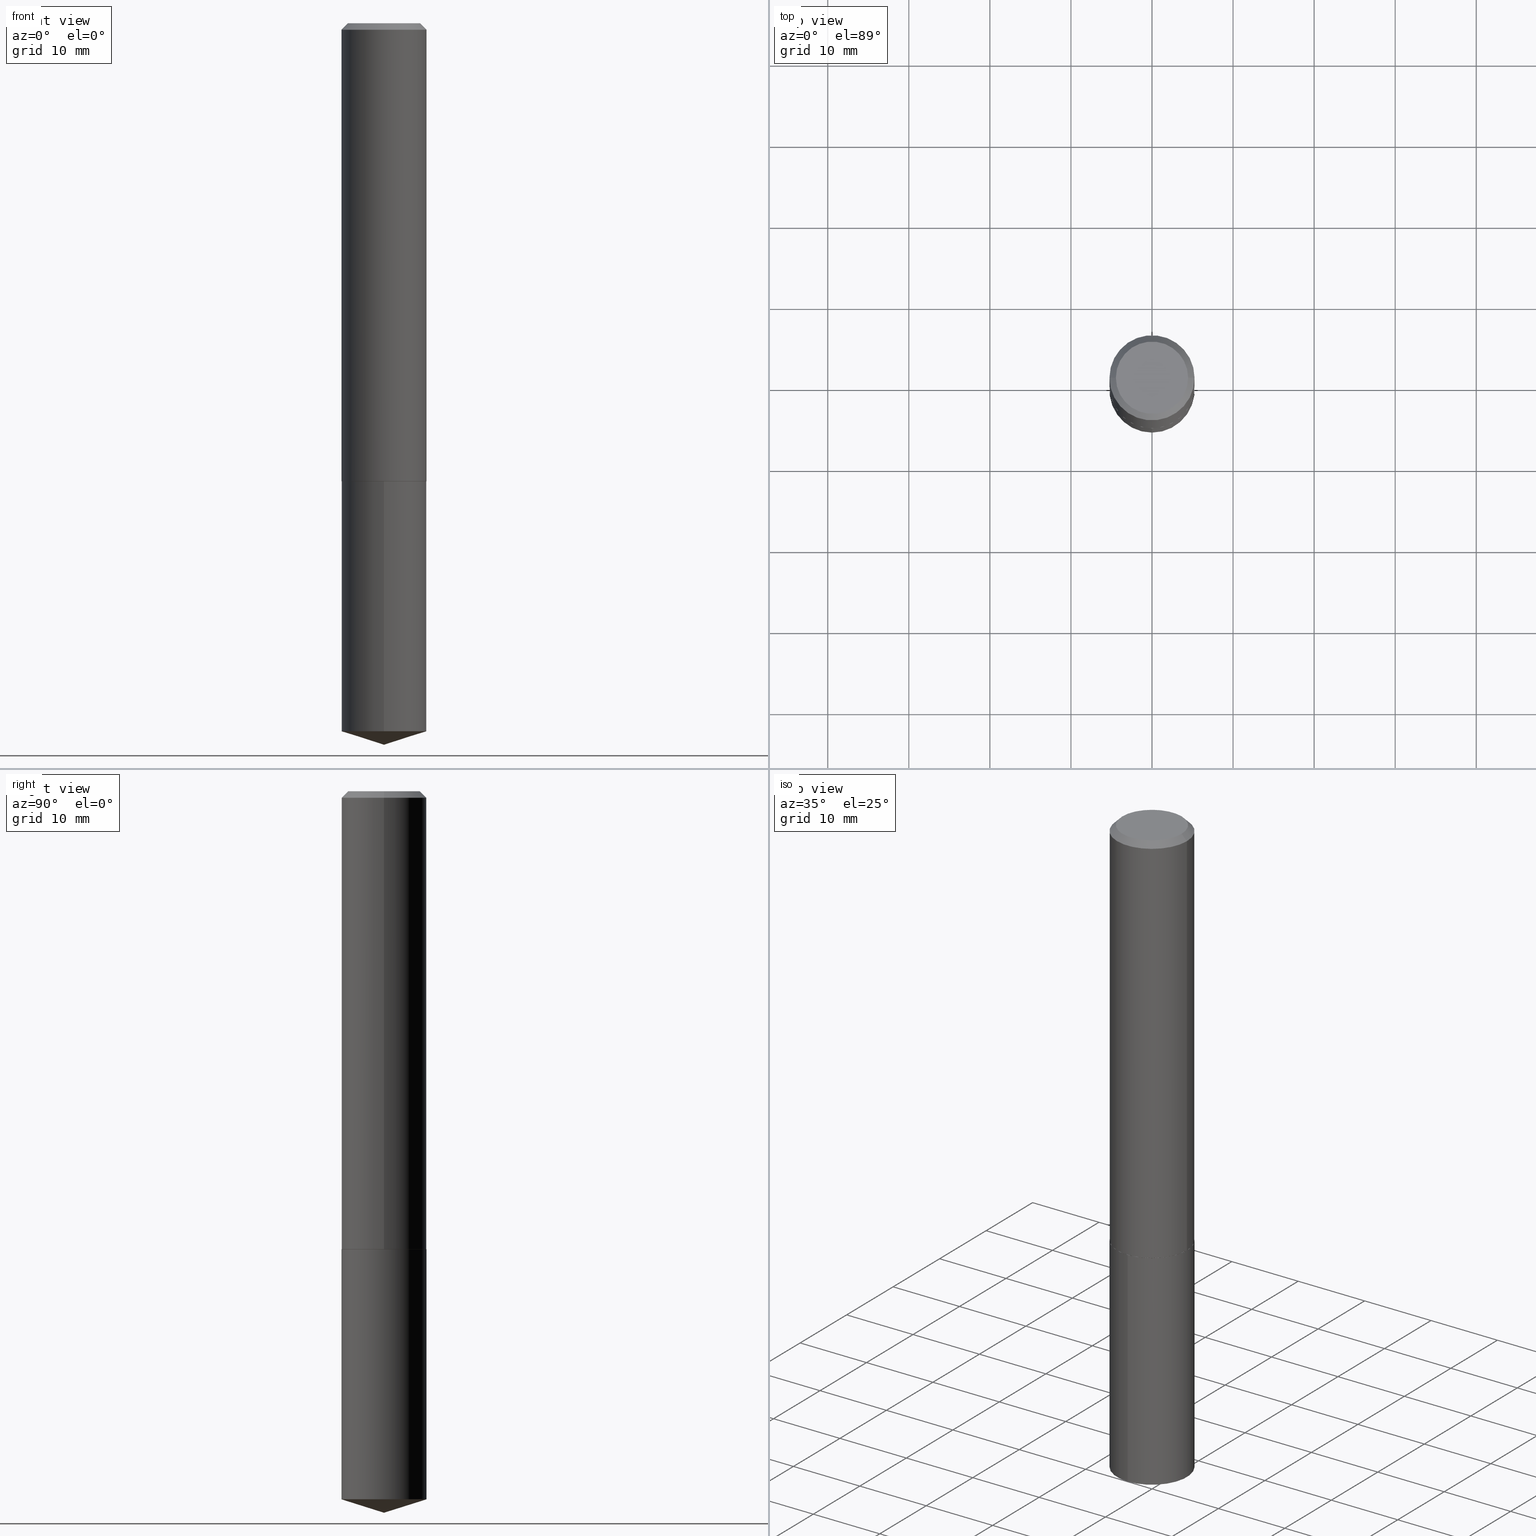
[diagram: canonical four-view strip — front | top / right | iso, engineering-drawing reading convention]
A machine part, canonical four-view strip (front | top / right | iso — engineering-drawing reading convention). The complete STEP part file that produces these views, byte-faithful:
ISO-10303-21;
HEADER;
FILE_DESCRIPTION (( 'STEP AP203' ),
    '1' );
FILE_NAME ('68753.STEP',
    '2024-04-23T13:51:40',
    ( '' ),
    ( '' ),
    'SwSTEP 2.0',
    'SolidWorks 2023',
    '' );
FILE_SCHEMA (( 'CONFIG_CONTROL_DESIGN' ));
ENDSEC;

DATA;
#1 = PERSON_AND_ORGANIZATION_ROLE ( 'design_supplier' ) ;
#2 = DIRECTION ( 'NONE',  ( 1.000000000000000000, -6.982962677686266711E-15, 0.000000000000000000 ) ) ;
#3 = CARTESIAN_POINT ( 'NONE',  ( 0.2067000000000002724, -9.208083734931024811E-15, -2.223899999999999544 ) ) ;
#4 = MANIFOLD_SOLID_BREP ( 'Body-Move/Copy2[1]', #75 ) ;
#5 = FACE_OUTER_BOUND ( 'NONE', #359, .T. ) ;
#6 = VERTEX_POINT ( 'NONE', #215 ) ;
#7 = EDGE_CURVE ( 'NONE', #139, #6, #233, .T. ) ;
#8 = PERSON_AND_ORGANIZATION_ROLE ( 'design_owner' ) ;
#9 = EDGE_CURVE ( 'NONE', #365, #387, #270, .T. ) ;
#10 = APPROVAL_PERSON_ORGANIZATION ( #118, #20, #295 ) ;
#11 = DIRECTION ( 'NONE',  ( -6.982962677686265133E-15, -1.000000000000000000, 2.643297526525653668E-15 ) ) ;
#12 = CYLINDRICAL_SURFACE ( 'NONE', #163, 0.2067000000000000226 ) ;
#13 = DIRECTION ( 'NONE',  ( 1.000000000000000000, -6.982962677686266711E-15, 4.876176775795936914E-29 ) ) ;
#14 = COORDINATED_UNIVERSAL_TIME_OFFSET ( 5, 0, .BEHIND. ) ;
#15 = LINE ( 'NONE', #98, #258 ) ;
#16 = PLANE ( 'NONE',  #193 ) ;
#17 = AXIS2_PLACEMENT_3D ( 'NONE', #277, #74, #182 ) ;
#18 = ORIENTED_EDGE ( 'NONE', *, *, #291, .F. ) ;
#19 = EDGE_LOOP ( 'NONE', ( #87, #184, #217, #186 ) ) ;
#20 = APPROVAL ( #362, 'UNSPECIFIED' ) ;
#21 = ORGANIZATION ( 'UNSPECIFIED', 'UNSPECIFIED', '' ) ;
#22 = PRODUCT_DEFINITION_SHAPE ( 'NONE', 'NONE',  #247 ) ;
#23 = COORDINATED_UNIVERSAL_TIME_OFFSET ( 5, 0, .BEHIND. ) ;
#24 = DIRECTION ( 'NONE',  ( -0.7071067811862576935, 7.493145998869306553E-15, 0.7071067811868373409 ) ) ;
#25 = CARTESIAN_POINT ( 'NONE',  ( -0.2067000000000002724, -6.296013514637141815E-15, -2.223899999999999544 ) ) ;
#26 = AXIS2_PLACEMENT_3D ( 'NONE', #330, #29, #138 ) ;
#27 = LOCAL_TIME ( 9, 51, 40.00000000000000000, #140 ) ;
#28 = COORDINATED_UNIVERSAL_TIME_OFFSET ( 5, 0, .BEHIND. ) ;
#29 = DIRECTION ( 'NONE',  ( 2.445468806185136597E-29, -3.491481338843145583E-15, -1.000000000000000000 ) ) ;
#30 = EDGE_LOOP ( 'NONE', ( #263, #199 ) ) ;
#31 = DATE_AND_TIME ( #133, #350 ) ;
#32 = CARTESIAN_POINT ( 'NONE',  ( -0.2062000000000005218, -6.298662741811253016E-15, -2.224399999999999711 ) ) ;
#33 = ORIENTED_EDGE ( 'NONE', *, *, #9, .T. ) ;
#34 = CIRCLE ( 'NONE', #379, 0.2067000000000000226 ) ;
#35 = DIRECTION ( 'NONE',  ( -2.445468806185136597E-29, 3.491481338843145583E-15, 1.000000000000000000 ) ) ;
#36 = DIRECTION ( 'NONE',  ( -2.445468806185136597E-29, 3.491481338843145583E-15, 1.000000000000000000 ) ) ;
#37 = EDGE_CURVE ( 'NONE', #130, #366, #161, .T. ) ;
#38 = DIRECTION ( 'NONE',  ( -2.444969995752846292E-29, 3.492195663772712113E-15, 1.000000000000000000 ) ) ;
#39 = FACE_OUTER_BOUND ( 'NONE', #135, .T. ) ;
#40 = DIRECTION ( 'NONE',  ( 2.438088387897960049E-29, -3.491481338843145188E-15, -1.000000000000000000 ) ) ;
#41 = CARTESIAN_POINT ( 'NONE',  ( 7.642090019328603538E-31, -1.091087918388490390E-16, -0.03125000000000021511 ) ) ;
#42 = LOCAL_TIME ( 9, 51, 40.00000000000000000, #355 ) ;
#43 = DIRECTION ( 'NONE',  ( -2.445468806185136597E-29, 3.491481338843145583E-15, 1.000000000000000000 ) ) ;
#44 = APPROVAL_ROLE ( '' ) ;
#45 = DIRECTION ( 'NONE',  ( 0.7071067811862576935, -2.468850131079221129E-15, 0.7071067811868373409 ) ) ;
#46 = CARTESIAN_POINT ( 'NONE',  ( 0.2067000000000000226, -1.552487177316600316E-15, -0.03125000000000021511 ) ) ;
#47 = CC_DESIGN_PERSON_AND_ORGANIZATION_ASSIGNMENT ( #170, #297, ( #206 ) ) ;
#48 = CARTESIAN_POINT ( 'NONE',  ( -8.769062132806807594E-28, 1.252533028168483221E-13, 35.86617874015747987 ) ) ;
#49 = VECTOR ( 'NONE', #210, 39.37007874015748143 ) ;
#50 = CONICAL_SURFACE ( 'NONE', #227, 0.2067000000000000226, 0.7853981633974450594 ) ;
#51 = CC_DESIGN_PERSON_AND_ORGANIZATION_ASSIGNMENT ( #112, #235, ( #363 ) ) ;
#52 = ORIENTED_EDGE ( 'NONE', *, *, #315, .T. ) ;
#53 = AXIS2_PLACEMENT_3D ( 'NONE', #324, #268, #261 ) ;
#54 = AXIS2_PLACEMENT_3D ( 'NONE', #158, #188, #371 ) ;
#55 = EDGE_LOOP ( 'NONE', ( #160, #174, #245 ) ) ;
#56 = LINE ( 'NONE', #329, #296 ) ;
#57 = CARTESIAN_POINT ( 'NONE',  ( -2.949913012720677210E-47, 4.211693974208505230E-33, 1.206277097160138851E-18 ) ) ;
#58 = ADVANCED_FACE ( 'NONE', ( #306 ), #332, .F. ) ;
#59 = LINE ( 'NONE', #352, #136 ) ;
#60 = VERTEX_POINT ( 'NONE', #357 ) ;
#61 = AXIS2_PLACEMENT_3D ( 'NONE', #116, #93, #223 ) ;
#62 = CC_DESIGN_APPROVAL ( #20, ( #206 ) ) ;
#63 = PERSON_AND_ORGANIZATION ( #382, #21 ) ;
#64 = CC_DESIGN_DATE_AND_TIME_ASSIGNMENT ( #115, #388, ( #247 ) ) ;
#65 = DIRECTION ( 'NONE',  ( -2.445468806185136597E-29, 3.491481338843145583E-15, 1.000000000000000000 ) ) ;
#66 = CARTESIAN_POINT ( 'NONE',  ( 5.439700812478218014E-29, -7.766451090122692732E-15, -2.224399999999999711 ) ) ;
#67 = ORIENTED_EDGE ( 'NONE', *, *, #100, .T. ) ;
#68 = DIRECTION ( 'NONE',  ( 1.000000000000000000, -6.982962677686266711E-15, 0.000000000000000000 ) ) ;
#69 = ORIENTED_EDGE ( 'NONE', *, *, #9, .F. ) ;
#70 = CYLINDRICAL_SURFACE ( 'NONE', #328, 0.2067000000000001336 ) ;
#71 = EDGE_CURVE ( 'NONE', #365, #348, #361, .T. ) ;
#72 = CARTESIAN_POINT ( 'NONE',  ( 8.408695702616728829E-29, -1.200712115933246900E-14, -3.438727740338714867 ) ) ;
#73 = DIRECTION ( 'NONE',  ( -6.982962677686265133E-15, -1.000000000000000000, 3.964946289788480107E-15 ) ) ;
#74 = DIRECTION ( 'NONE',  ( -2.444969995752846292E-29, 3.492195663772712113E-15, 1.000000000000000000 ) ) ;
#75 = CLOSED_SHELL ( 'NONE', ( #243, #380, #198, #318, #378 ) ) ;
#76 = CONICAL_SURFACE ( 'NONE', #101, 124.8659371009160282, 1.265363707695893902 ) ;
#77 = VERTEX_POINT ( 'NONE', #238 ) ;
#78 = EDGE_CURVE ( 'NONE', #345, #387, #236, .T. ) ;
#79 = CIRCLE ( 'NONE', #124, 0.2062000000000005218 ) ;
#80 = AXIS2_PLACEMENT_3D ( 'NONE', #375, #102, #340 ) ;
#81 = CARTESIAN_POINT ( 'NONE',  ( 5.438478078075124092E-29, -7.764705349453270440E-15, -2.223899999999999544 ) ) ;
#82 = AXIS2_PLACEMENT_3D ( 'NONE', #293, #386, #2 ) ;
#83 = EDGE_LOOP ( 'NONE', ( #237, #141, #164, #18 ) ) ;
#84 = CALENDAR_DATE ( 2024, 23, 4 ) ;
#85 = CARTESIAN_POINT ( 'NONE',  ( 0.2067000000000002724, -9.208083734931024811E-15, -2.223899999999999544 ) ) ;
#86 = DIRECTION ( 'NONE',  ( 1.000000000000000000, -6.982962677686265922E-15, 4.876176775795935793E-29 ) ) ;
#87 = ORIENTED_EDGE ( 'NONE', *, *, #100, .F. ) ;
#88 = EDGE_CURVE ( 'NONE', #345, #354, #205, .T. ) ;
#89 = CC_DESIGN_SECURITY_CLASSIFICATION ( #206, ( #363 ) ) ;
#90 = DIRECTION ( 'NONE',  ( 1.000000000000000000, -6.982962677686267499E-15, 4.876214437063800301E-29 ) ) ;
#91 = DIRECTION ( 'NONE',  ( -2.444969995752846292E-29, 3.492195663772712113E-15, 1.000000000000000000 ) ) ;
#92 = DIRECTION ( 'NONE',  ( -2.445468806185136877E-29, 3.491481338843145188E-15, 1.000000000000000000 ) ) ;
#93 = DIRECTION ( 'NONE',  ( -2.444969995752846292E-29, 3.492195663772712113E-15, 1.000000000000000000 ) ) ;
#94 = ORIENTED_EDGE ( 'NONE', *, *, #338, .F. ) ;
#95 = VECTOR ( 'NONE', #150, 39.37007874015748143 ) ;
#96 = APPROVAL_STATUS ( 'not_yet_approved' ) ;
#97 = DIRECTION ( 'NONE',  ( -2.445468806185136597E-29, 3.491481338843145583E-15, 1.000000000000000000 ) ) ;
#98 = CARTESIAN_POINT ( 'NONE',  ( -1.443378385477696981E-15, -0.2067000000000077664, -2.224399999999998823 ) ) ;
#99 = APPLICATION_CONTEXT ( 'configuration controlled 3d designs of mechanical parts and assemblies' ) ;
#100 = EDGE_CURVE ( 'NONE', #366, #348, #56, .T. ) ;
#101 = AXIS2_PLACEMENT_3D ( 'NONE', #48, #226, #344 ) ;
#102 = DIRECTION ( 'NONE',  ( -2.445468806185136597E-29, 3.491481338843145583E-15, 1.000000000000000000 ) ) ;
#103 = CARTESIAN_POINT ( 'NONE',  ( 5.439700812478216893E-29, -7.766451090122692732E-15, -2.224399999999999711 ) ) ;
#104 = ORIENTED_EDGE ( 'NONE', *, *, #110, .F. ) ;
#105 = ADVANCED_FACE ( 'NONE', ( #298 ), #325, .T. ) ;
#106 = AXIS2_PLACEMENT_3D ( 'NONE', #246, #195, #218 ) ;
#107 = CC_DESIGN_APPROVAL ( #301, ( #363 ) ) ;
#108 = ORIENTED_EDGE ( 'NONE', *, *, #269, .T. ) ;
#109 = ORIENTED_EDGE ( 'NONE', *, *, #88, .T. ) ;
#110 = EDGE_CURVE ( 'NONE', #354, #77, #59, .T. ) ;
#111 = DIRECTION ( 'NONE',  ( -2.445468806185136597E-29, 3.491481338843145583E-15, 1.000000000000000000 ) ) ;
#112 = PERSON_AND_ORGANIZATION ( #382, #21 ) ;
#113 = ORIENTED_EDGE ( 'NONE', *, *, #259, .T. ) ;
#114 = ORIENTED_EDGE ( 'NONE', *, *, #214, .F. ) ;
#115 = DATE_AND_TIME ( #305, #27 ) ;
#116 = CARTESIAN_POINT ( 'NONE',  ( -8.769062132806807594E-28, 1.252533028168483221E-13, 35.86617874015747987 ) ) ;
#117 = CC_DESIGN_PERSON_AND_ORGANIZATION_ASSIGNMENT ( #229, #166, ( #247 ) ) ;
#118 = PERSON_AND_ORGANIZATION ( #382, #21 ) ;
#119 = DIRECTION ( 'NONE',  ( -2.445468806185136597E-29, 3.491481338843145583E-15, 1.000000000000000000 ) ) ;
#120 = CIRCLE ( 'NONE', #346, 0.1754499999999999948 ) ;
#121 = CC_DESIGN_APPROVAL ( #190, ( #247 ) ) ;
#122 = APPROVAL_ROLE ( '' ) ;
#123 =( NAMED_UNIT ( * ) PLANE_ANGLE_UNIT ( ) SI_UNIT ( $, .RADIAN. ) );
#124 = AXIS2_PLACEMENT_3D ( 'NONE', #272, #35, #369 ) ;
#125 = CIRCLE ( 'NONE', #152, 0.2067000000000000226 ) ;
#126 = CARTESIAN_POINT ( 'NONE',  ( 5.438478078075124092E-29, -7.764705349453270440E-15, -2.223899999999999544 ) ) ;
#127 = PRODUCT ( '68753', '68753', '', ( #157 ) ) ;
#128 = MANIFOLD_SOLID_BREP ( 'Body-Move/Copy2[2]', #230 ) ;
#129 = CIRCLE ( 'NONE', #282, 0.2067000000000002724 ) ;
#130 = VERTEX_POINT ( 'NONE', #241 ) ;
#131 = AXIS2_PLACEMENT_3D ( 'NONE', #224, #149, #252 ) ;
#132 = EDGE_CURVE ( 'NONE', #354, #345, #120, .T. ) ;
#133 = CALENDAR_DATE ( 2024, 23, 4 ) ;
#134 = CALENDAR_DATE ( 2024, 23, 4 ) ;
#135 = EDGE_LOOP ( 'NONE', ( #265, #108, #33, #181 ) ) ;
#136 = VECTOR ( 'NONE', #302, 39.37007874015748143 ) ;
#137 = CALENDAR_DATE ( 2024, 23, 4 ) ;
#138 = DIRECTION ( 'NONE',  ( -1.000000000000000000, 6.982962677686265133E-15, 0.000000000000000000 ) ) ;
#139 = VERTEX_POINT ( 'NONE', #290 ) ;
#140 = COORDINATED_UNIVERSAL_TIME_OFFSET ( 5, 0, .BEHIND. ) ;
#141 = ORIENTED_EDGE ( 'NONE', *, *, #333, .T. ) ;
#142 = LINE ( 'NONE', #3, #299 ) ;
#143 = ORIENTED_EDGE ( 'NONE', *, *, #132, .F. ) ;
#144 = CONICAL_SURFACE ( 'NONE', #82, 0.2067000000000002724, 0.7853981633970383847 ) ;
#145 = DIRECTION ( 'NONE',  ( 2.445468806185136597E-29, -3.491481338843145583E-15, -1.000000000000000000 ) ) ;
#146 = FACE_OUTER_BOUND ( 'NONE', #83, .T. ) ;
#147 = PRODUCT_RELATED_PRODUCT_CATEGORY ( 'detail', '', ( #127 ) ) ;
#148 = CARTESIAN_POINT ( 'NONE',  ( -1.474956506360338605E-47, 2.105846987104252615E-33, 6.031385485800694257E-19 ) ) ;
#149 = DIRECTION ( 'NONE',  ( 0.000000000000000000, 0.000000000000000000, 1.000000000000000000 ) ) ;
#150 = DIRECTION ( 'NONE',  ( -2.444969995752846292E-29, 3.492195663772712507E-15, 1.000000000000000000 ) ) ;
#151 = CARTESIAN_POINT ( 'NONE',  ( -1.443378385477666413E-15, -0.2067000000000119853, -3.438727740338714423 ) ) ;
#152 = AXIS2_PLACEMENT_3D ( 'NONE', #185, #91, #244 ) ;
#153 = CC_DESIGN_PERSON_AND_ORGANIZATION_ASSIGNMENT ( #63, #1, ( #363 ) ) ;
#154 = DIRECTION ( 'NONE',  ( -6.659769872151636033E-15, -0.9537169507482272657, 0.3007057995042716758 ) ) ;
#155 = DIRECTION ( 'NONE',  ( 1.000000000000000000, -6.982962677686265133E-15, 0.000000000000000000 ) ) ;
#156 = ORIENTED_EDGE ( 'NONE', *, *, #88, .F. ) ;
#157 = MECHANICAL_CONTEXT ( 'NONE', #99, 'mechanical' ) ;
#158 = CARTESIAN_POINT ( 'NONE',  ( 5.439700812478216893E-29, -7.766451090122692732E-15, -2.224399999999999711 ) ) ;
#159 = FACE_OUTER_BOUND ( 'NONE', #30, .T. ) ;
#160 = ORIENTED_EDGE ( 'NONE', *, *, #7, .F. ) ;
#161 = CIRCLE ( 'NONE', #321, 0.2062000000000005218 ) ;
#162 = AXIS2_PLACEMENT_3D ( 'NONE', #41, #43, #155 ) ;
#163 = AXIS2_PLACEMENT_3D ( 'NONE', #251, #334, #73 ) ;
#164 = ORIENTED_EDGE ( 'NONE', *, *, #255, .F. ) ;
#165 = DIRECTION ( 'NONE',  ( -2.445468806185136597E-29, 3.491481338843145583E-15, 1.000000000000000000 ) ) ;
#166 = PERSON_AND_ORGANIZATION_ROLE ( 'creator' ) ;
#167 = FACE_OUTER_BOUND ( 'NONE', #19, .T. ) ;
#168 = EDGE_LOOP ( 'NONE', ( #276, #266, #322 ) ) ;
#169 = ADVANCED_FACE ( 'NONE', ( #167 ), #144, .T. ) ;
#170 = PERSON_AND_ORGANIZATION ( #382, #21 ) ;
#171 = CARTESIAN_POINT ( 'NONE',  ( 5.438478078075124092E-29, -7.764705349453270440E-15, -2.223899999999999544 ) ) ;
#172 = DIRECTION ( 'NONE',  ( 1.000000000000000000, -6.982962677686266711E-15, 0.000000000000000000 ) ) ;
#173 = VECTOR ( 'NONE', #92, 39.37007874015748143 ) ;
#174 = ORIENTED_EDGE ( 'NONE', *, *, #257, .T. ) ;
#175 = EDGE_LOOP ( 'NONE', ( #287, #143, #197, #201 ) ) ;
#176 = APPROVAL_PERSON_ORGANIZATION ( #271, #301, #122 ) ;
#177 = DATE_AND_TIME ( #137, #242 ) ;
#178 = ORIENTED_EDGE ( 'NONE', *, *, #291, .T. ) ;
#179 = DIRECTION ( 'NONE',  ( -1.000000000000000000, 6.982962677686265922E-15, -4.876176775795935793E-29 ) ) ;
#180 = DIRECTION ( 'NONE',  ( 1.000000000000000000, -6.982962677686269866E-15, 0.000000000000000000 ) ) ;
#181 = ORIENTED_EDGE ( 'NONE', *, *, #309, .F. ) ;
#182 = DIRECTION ( 'NONE',  ( -6.982962677686265133E-15, -1.000000000000000000, 3.964946289788480107E-15 ) ) ;
#183 = ADVANCED_FACE ( 'NONE', ( #364 ), #200, .T. ) ;
#184 = ORIENTED_EDGE ( 'NONE', *, *, #208, .T. ) ;
#185 = CARTESIAN_POINT ( 'NONE',  ( 8.408695702616728829E-29, -1.200712115933246900E-14, -3.438727740338714867 ) ) ;
#186 = ORIENTED_EDGE ( 'NONE', *, *, #269, .F. ) ;
#187 =( LENGTH_UNIT ( ) NAMED_UNIT ( * ) SI_UNIT ( $, .METRE. ) );
#188 = DIRECTION ( 'NONE',  ( -2.444969995752846292E-29, 3.492195663772712113E-15, 1.000000000000000000 ) ) ;
#189 = DIRECTION ( 'NONE',  ( -2.445468806185136877E-29, 3.491481338843145188E-15, 1.000000000000000000 ) ) ;
#190 = APPROVAL ( #96, 'UNSPECIFIED' ) ;
#191 = DIRECTION ( 'NONE',  ( -1.000000000000000000, 6.982962677686265133E-15, 0.000000000000000000 ) ) ;
#192 = CARTESIAN_POINT ( 'NONE',  ( -1.443378385477696981E-15, -0.2067000000000077664, -2.224399999999998823 ) ) ;
#193 = AXIS2_PLACEMENT_3D ( 'NONE', #103, #225, #341 ) ;
#194 = LENGTH_MEASURE_WITH_UNIT ( LENGTH_MEASURE( 0.02539999999999999897 ), #187 );
#195 = DIRECTION ( 'NONE',  ( -2.444969995752846292E-29, 3.492195663772712113E-15, 1.000000000000000000 ) ) ;
#196 = FACE_OUTER_BOUND ( 'NONE', #168, .T. ) ;
#197 = ORIENTED_EDGE ( 'NONE', *, *, #110, .T. ) ;
#198 = ADVANCED_FACE ( 'NONE', ( #264 ), #339, .T. ) ;
#199 = ORIENTED_EDGE ( 'NONE', *, *, #214, .T. ) ;
#200 = CONICAL_SURFACE ( 'NONE', #26, 0.2067000000000000226, 0.7853981633974450594 ) ;
#201 = ORIENTED_EDGE ( 'NONE', *, *, #309, .T. ) ;
#202 = ADVANCED_FACE ( 'NONE', ( #5 ), #312, .F. ) ;
#203 = SHAPE_DEFINITION_REPRESENTATION ( #22, #280 ) ;
#204 = ORIENTED_EDGE ( 'NONE', *, *, #333, .F. ) ;
#205 = CIRCLE ( 'NONE', #260, 0.1754499999999999948 ) ;
#206 = SECURITY_CLASSIFICATION ( '', '', #351 ) ;
#207 = DIRECTION ( 'NONE',  ( 1.000000000000000000, -6.982962677686267499E-15, 4.876214437063800301E-29 ) ) ;
#208 = EDGE_CURVE ( 'NONE', #366, #130, #79, .T. ) ;
#209 = DATE_AND_TIME ( #84, #42 ) ;
#210 = DIRECTION ( 'NONE',  ( 0.7071067811865452413, -7.319954787623248157E-15, -0.7071067811865497932 ) ) ;
#211 = AXIS2_PLACEMENT_3D ( 'NONE', #81, #119, #172 ) ;
#212 = ORIENTED_EDGE ( 'NONE', *, *, #37, .F. ) ;
#213 = CIRCLE ( 'NONE', #80, 0.2067000000000000226 ) ;
#214 = EDGE_CURVE ( 'NONE', #60, #308, #281, .T. ) ;
#215 = CARTESIAN_POINT ( 'NONE',  ( 1.468691834816210864E-15, 0.2066999999999878934, -3.438727740338715755 ) ) ;
#216 = DESIGN_CONTEXT ( 'detailed design', #314, 'design' ) ;
#217 = ORIENTED_EDGE ( 'NONE', *, *, #372, .T. ) ;
#218 = DIRECTION ( 'NONE',  ( -6.982962677686265133E-15, -1.000000000000000000, 3.964946289788480107E-15 ) ) ;
#219 = AXIS2_PLACEMENT_3D ( 'NONE', #66, #381, #86 ) ;
#220 = CARTESIAN_POINT ( 'NONE',  ( 7.642090019328603538E-31, -1.091087918388490390E-16, -0.03125000000000021511 ) ) ;
#221 = FACE_OUTER_BOUND ( 'NONE', #370, .T. ) ;
#222 = LINE ( 'NONE', #337, #232 ) ;
#223 = DIRECTION ( 'NONE',  ( -6.982962677686265922E-15, -1.000000000000000000, 3.500519750498677611E-15 ) ) ;
#224 = CARTESIAN_POINT ( 'NONE',  ( 0.000000000000000000, 0.000000000000000000, 0.000000000000000000 ) ) ;
#225 = DIRECTION ( 'NONE',  ( 2.444969995752845731E-29, -3.492195663772712507E-15, -1.000000000000000000 ) ) ;
#226 = DIRECTION ( 'NONE',  ( -2.444969995752846292E-29, 3.492195663772712113E-15, 1.000000000000000000 ) ) ;
#227 = AXIS2_PLACEMENT_3D ( 'NONE', #220, #145, #191 ) ;
#228 = ADVANCED_FACE ( 'NONE', ( #39 ), #70, .T. ) ;
#229 = PERSON_AND_ORGANIZATION ( #382, #21 ) ;
#230 = CLOSED_SHELL ( 'NONE', ( #183, #105, #353, #58, #169, #228, #327, #202 ) ) ;
#231 = CARTESIAN_POINT ( 'NONE',  ( -2.949913012720677210E-47, 4.211693974208505230E-33, 1.206277097160138851E-18 ) ) ;
#232 = VECTOR ( 'NONE', #154, 39.37007874015748854 ) ;
#233 = LINE ( 'NONE', #358, #273 ) ;
#234 = APPROVAL_DATE_TIME ( #209, #20 ) ;
#235 = PERSON_AND_ORGANIZATION_ROLE ( 'creator' ) ;
#236 = LINE ( 'NONE', #389, #49 ) ;
#237 = ORIENTED_EDGE ( 'NONE', *, *, #384, .T. ) ;
#238 = CARTESIAN_POINT ( 'NONE',  ( -0.2067000000000000226, -2.468215235829930751E-15, -0.03125000000000021511 ) ) ;
#239 = EDGE_LOOP ( 'NONE', ( #212, #390 ) ) ;
#240 = APPROVAL_DATE_TIME ( #31, #190 ) ;
#241 = CARTESIAN_POINT ( 'NONE',  ( 0.2062000000000005218, -9.206337994261605674E-15, -2.224399999999999711 ) ) ;
#242 = LOCAL_TIME ( 9, 51, 40.00000000000000000, #28 ) ;
#243 = ADVANCED_FACE ( 'NONE', ( #146 ), #12, .T. ) ;
#244 = DIRECTION ( 'NONE',  ( -6.982962677686265133E-15, -1.000000000000000000, 2.643297526525653668E-15 ) ) ;
#245 = ORIENTED_EDGE ( 'NONE', *, *, #315, .F. ) ;
#246 = CARTESIAN_POINT ( 'NONE',  ( 5.439700812478216893E-29, -7.766451090122692732E-15, -2.224399999999999711 ) ) ;
#247 = PRODUCT_DEFINITION ( 'UNKNOWN', '', #363, #216 ) ;
#248 = PERSON_AND_ORGANIZATION ( #382, #21 ) ;
#249 = CARTESIAN_POINT ( 'NONE',  ( 0.000000000000000000, 0.000000000000000000, 0.000000000000000000 ) ) ;
#250 = AXIS2_PLACEMENT_3D ( 'NONE', #148, #40, #179 ) ;
#251 = CARTESIAN_POINT ( 'NONE',  ( 5.439700812478216893E-29, -7.766451090122692732E-15, -2.224399999999999711 ) ) ;
#252 = DIRECTION ( 'NONE',  ( 1.000000000000000000, 0.000000000000000000, 0.000000000000000000 ) ) ;
#253 = DIRECTION ( 'NONE',  ( 1.000000000000000000, -6.982962677686266711E-15, 0.000000000000000000 ) ) ;
#254 = DIRECTION ( 'NONE',  ( -2.444969995752846292E-29, 3.492195663772712507E-15, 1.000000000000000000 ) ) ;
#255 = EDGE_CURVE ( 'NONE', #308, #60, #288, .T. ) ;
#256 = APPLICATION_PROTOCOL_DEFINITION ( 'international standard', 'config_control_design', 1994, #99 ) ;
#257 = EDGE_CURVE ( 'NONE', #139, #294, #222, .T. ) ;
#258 = VECTOR ( 'NONE', #254, 39.37007874015748143 ) ;
#259 = EDGE_CURVE ( 'NONE', #348, #77, #279, .T. ) ;
#260 = AXIS2_PLACEMENT_3D ( 'NONE', #231, #111, #207 ) ;
#261 = DIRECTION ( 'NONE',  ( 1.000000000000000000, -6.982962677686266711E-15, 4.876176775795936914E-29 ) ) ;
#262 = DIRECTION ( 'NONE',  ( 6.776566513254261293E-15, 0.9537169507482294861, 0.3007057995042650700 ) ) ;
#263 = ORIENTED_EDGE ( 'NONE', *, *, #255, .T. ) ;
#264 = FACE_OUTER_BOUND ( 'NONE', #55, .T. ) ;
#265 = ORIENTED_EDGE ( 'NONE', *, *, #259, .F. ) ;
#266 = ORIENTED_EDGE ( 'NONE', *, *, #7, .T. ) ;
#267 = DATE_TIME_ROLE ( 'classification_date' ) ;
#268 = DIRECTION ( 'NONE',  ( -2.445468806185136597E-29, 3.491481338843145583E-15, 1.000000000000000000 ) ) ;
#269 = EDGE_CURVE ( 'NONE', #348, #365, #129, .T. ) ;
#270 = LINE ( 'NONE', #274, #173 ) ;
#271 = PERSON_AND_ORGANIZATION ( #382, #21 ) ;
#272 = CARTESIAN_POINT ( 'NONE',  ( 5.439700812478218014E-29, -7.766451090122692732E-15, -2.224399999999999711 ) ) ;
#273 = VECTOR ( 'NONE', #262, 39.37007874015748854 ) ;
#274 = CARTESIAN_POINT ( 'NONE',  ( 0.2067000000000001336, -1.443378385477752202E-15, 1.007905739557020761E-29 ) ) ;
#275 = ORIENTED_EDGE ( 'NONE', *, *, #78, .T. ) ;
#276 = ORIENTED_EDGE ( 'NONE', *, *, #257, .F. ) ;
#277 = CARTESIAN_POINT ( 'NONE',  ( 5.439700812478216893E-29, -7.766451090122692732E-15, -2.224399999999999711 ) ) ;
#278 = PERSON_AND_ORGANIZATION ( #382, #21 ) ;
#279 = LINE ( 'NONE', #285, #383 ) ;
#280 = ADVANCED_BREP_SHAPE_REPRESENTATION ( '68753', ( #4, #128, #131 ), #347 ) ;
#281 = CIRCLE ( 'NONE', #106, 0.2067000000000000226 ) ;
#282 = AXIS2_PLACEMENT_3D ( 'NONE', #126, #310, #253 ) ;
#283 =( CONVERSION_BASED_UNIT ( 'INCH', #194 ) LENGTH_UNIT ( ) NAMED_UNIT ( #342 ) );
#284 = CARTESIAN_POINT ( 'NONE',  ( 0.1754499999999999948, -1.365424050843619950E-15, 1.206277097169196885E-18 ) ) ;
#285 = CARTESIAN_POINT ( 'NONE',  ( -0.2067000000000001336, 1.468691834816128034E-15, -1.016743883155689846E-29 ) ) ;
#286 = CC_DESIGN_PERSON_AND_ORGANIZATION_ASSIGNMENT ( #278, #8, ( #127 ) ) ;
#287 = ORIENTED_EDGE ( 'NONE', *, *, #78, .F. ) ;
#288 = CIRCLE ( 'NONE', #54, 0.2067000000000000226 ) ;
#289 = APPROVAL_PERSON_ORGANIZATION ( #248, #190, #44 ) ;
#290 = CARTESIAN_POINT ( 'NONE',  ( 8.566930368118398090E-29, -1.223630438629320696E-14, -3.503899999999999793 ) ) ;
#291 = EDGE_CURVE ( 'NONE', #294, #308, #15, .T. ) ;
#292 = APPROVAL_STATUS ( 'not_yet_approved' ) ;
#293 = CARTESIAN_POINT ( 'NONE',  ( 5.438478078075124092E-29, -7.764705349453270440E-15, -2.223899999999999544 ) ) ;
#294 = VERTEX_POINT ( 'NONE', #151 ) ;
#295 = APPROVAL_ROLE ( '' ) ;
#296 = VECTOR ( 'NONE', #24, 39.37007874015748143 ) ;
#297 = PERSON_AND_ORGANIZATION_ROLE ( 'classification_officer' ) ;
#298 = FACE_OUTER_BOUND ( 'NONE', #300, .T. ) ;
#299 = VECTOR ( 'NONE', #45, 39.37007874015748143 ) ;
#300 = EDGE_LOOP ( 'NONE', ( #377, #113, #94, #69 ) ) ;
#301 = APPROVAL ( #292, 'UNSPECIFIED' ) ;
#302 = DIRECTION ( 'NONE',  ( -0.7071067811865452413, 2.468850131082233000E-15, -0.7071067811865497932 ) ) ;
#303 = EDGE_LOOP ( 'NONE', ( #368, #67, #343, #374 ) ) ;
#304 = EDGE_LOOP ( 'NONE', ( #156, #275, #320, #104 ) ) ;
#305 = CALENDAR_DATE ( 2024, 23, 4 ) ;
#306 = FACE_OUTER_BOUND ( 'NONE', #239, .T. ) ;
#307 = LOCAL_TIME ( 9, 51, 40.00000000000000000, #23 ) ;
#308 = VERTEX_POINT ( 'NONE', #192 ) ;
#309 = EDGE_CURVE ( 'NONE', #77, #387, #213, .T. ) ;
#310 = DIRECTION ( 'NONE',  ( -2.445468806185136597E-29, 3.491481338843145583E-15, 1.000000000000000000 ) ) ;
#311 = UNCERTAINTY_MEASURE_WITH_UNIT (LENGTH_MEASURE( 1.000000000000000082E-05 ), #283, 'distance_accuracy_value', 'NONE');
#312 = PLANE ( 'NONE',  #250 ) ;
#313 = CARTESIAN_POINT ( 'NONE',  ( 1.468691834816181282E-15, 0.2066999999999922510, -2.224400000000000599 ) ) ;
#314 = APPLICATION_CONTEXT ( 'configuration controlled 3d designs of mechanical parts and assemblies' ) ;
#315 = EDGE_CURVE ( 'NONE', #6, #294, #125, .T. ) ;
#316 = FACE_OUTER_BOUND ( 'NONE', #175, .T. ) ;
#317 = APPLICATION_PROTOCOL_DEFINITION ( 'international standard', 'config_control_design', 1994, #314 ) ;
#318 = ADVANCED_FACE ( 'NONE', ( #221 ), #336, .T. ) ;
#319 = CIRCLE ( 'NONE', #162, 0.2067000000000000226 ) ;
#320 = ORIENTED_EDGE ( 'NONE', *, *, #338, .T. ) ;
#321 = AXIS2_PLACEMENT_3D ( 'NONE', #331, #65, #180 ) ;
#322 = ORIENTED_EDGE ( 'NONE', *, *, #384, .F. ) ;
#323 = CONICAL_SURFACE ( 'NONE', #376, 0.2067000000000002724, 0.7853981633970383847 ) ;
#324 = CARTESIAN_POINT ( 'NONE',  ( 0.000000000000000000, 0.000000000000000000, 0.000000000000000000 ) ) ;
#325 = CYLINDRICAL_SURFACE ( 'NONE', #53, 0.2067000000000001336 ) ;
#326 = ORIENTED_EDGE ( 'NONE', *, *, #132, .T. ) ;
#327 = ADVANCED_FACE ( 'NONE', ( #316 ), #50, .T. ) ;
#328 = AXIS2_PLACEMENT_3D ( 'NONE', #249, #97, #13 ) ;
#329 = CARTESIAN_POINT ( 'NONE',  ( -0.2067000000000002724, -6.296013514637141815E-15, -2.223899999999999544 ) ) ;
#330 = CARTESIAN_POINT ( 'NONE',  ( 7.642090019328603538E-31, -1.091087918388490390E-16, -0.03125000000000021511 ) ) ;
#331 = CARTESIAN_POINT ( 'NONE',  ( 5.439700812478218014E-29, -7.766451090122692732E-15, -2.224399999999999711 ) ) ;
#332 = PLANE ( 'NONE',  #219 ) ;
#333 = EDGE_CURVE ( 'NONE', #6, #60, #335, .T. ) ;
#334 = DIRECTION ( 'NONE',  ( -2.444969995752846292E-29, 3.492195663772712113E-15, 1.000000000000000000 ) ) ;
#335 = LINE ( 'NONE', #313, #95 ) ;
#336 = CYLINDRICAL_SURFACE ( 'NONE', #17, 0.2067000000000000226 ) ;
#337 = CARTESIAN_POINT ( 'NONE',  ( 8.566930368118398090E-29, -1.223630438629320538E-14, -3.503899999999999793 ) ) ;
#338 = EDGE_CURVE ( 'NONE', #387, #77, #319, .T. ) ;
#339 = CONICAL_SURFACE ( 'NONE', #61, 124.8659371009160282, 1.265363707695893902 ) ;
#340 = DIRECTION ( 'NONE',  ( 1.000000000000000000, -6.982962677686265133E-15, 0.000000000000000000 ) ) ;
#341 = DIRECTION ( 'NONE',  ( 6.982962677686265922E-15, 1.000000000000000000, -3.492195663772712507E-15 ) ) ;
#342 = DIMENSIONAL_EXPONENTS ( 1.000000000000000000, 0.000000000000000000, 0.000000000000000000, 0.000000000000000000, 0.000000000000000000, 0.000000000000000000, 0.000000000000000000 ) ;
#343 = ORIENTED_EDGE ( 'NONE', *, *, #71, .F. ) ;
#344 = DIRECTION ( 'NONE',  ( -6.982962677686265922E-15, -1.000000000000000000, 3.500519750498677611E-15 ) ) ;
#345 = VERTEX_POINT ( 'NONE', #284 ) ;
#346 = AXIS2_PLACEMENT_3D ( 'NONE', #57, #165, #90 ) ;
#347 =( GEOMETRIC_REPRESENTATION_CONTEXT ( 3 ) GLOBAL_UNCERTAINTY_ASSIGNED_CONTEXT ( ( #311 ) ) GLOBAL_UNIT_ASSIGNED_CONTEXT ( ( #283, #123, #373 ) ) REPRESENTATION_CONTEXT ( 'NONE', 'WORKASPACE' ) );
#348 = VERTEX_POINT ( 'NONE', #25 ) ;
#349 = FACE_OUTER_BOUND ( 'NONE', #303, .T. ) ;
#350 = LOCAL_TIME ( 9, 51, 40.00000000000000000, #14 ) ;
#351 = SECURITY_CLASSIFICATION_LEVEL ( 'unclassified' ) ;
#352 = CARTESIAN_POINT ( 'NONE',  ( -0.2067000000000000226, 1.334269593638902312E-15, -0.03125000000000021511 ) ) ;
#353 = ADVANCED_FACE ( 'NONE', ( #349 ), #323, .T. ) ;
#354 = VERTEX_POINT ( 'NONE', #360 ) ;
#355 = COORDINATED_UNIVERSAL_TIME_OFFSET ( 5, 0, .BEHIND. ) ;
#356 = DATE_AND_TIME ( #134, #307 ) ;
#357 = CARTESIAN_POINT ( 'NONE',  ( 1.468691834816211258E-15, 0.2066999999999922510, -2.224400000000000599 ) ) ;
#358 = CARTESIAN_POINT ( 'NONE',  ( 8.569168934925979000E-29, -1.223312649754655018E-14, -3.503899999999999793 ) ) ;
#359 = EDGE_LOOP ( 'NONE', ( #326, #109 ) ) ;
#360 = CARTESIAN_POINT ( 'NONE',  ( -0.1754499999999999948, 1.279715197719478945E-15, 1.206277097151380300E-18 ) ) ;
#361 = CIRCLE ( 'NONE', #211, 0.2067000000000002724 ) ;
#362 = APPROVAL_STATUS ( 'not_yet_approved' ) ;
#363 = PRODUCT_DEFINITION_FORMATION_WITH_SPECIFIED_SOURCE ( 'ANY', '', #127, .NOT_KNOWN. ) ;
#364 = FACE_OUTER_BOUND ( 'NONE', #304, .T. ) ;
#365 = VERTEX_POINT ( 'NONE', #85 ) ;
#366 = VERTEX_POINT ( 'NONE', #32 ) ;
#367 = CC_DESIGN_DATE_AND_TIME_ASSIGNMENT ( #177, #267, ( #206 ) ) ;
#368 = ORIENTED_EDGE ( 'NONE', *, *, #37, .T. ) ;
#369 = DIRECTION ( 'NONE',  ( 1.000000000000000000, -6.982962677686269866E-15, 0.000000000000000000 ) ) ;
#370 = EDGE_LOOP ( 'NONE', ( #204, #52, #178, #114 ) ) ;
#371 = DIRECTION ( 'NONE',  ( -6.982962677686265133E-15, -1.000000000000000000, 3.964946289788480107E-15 ) ) ;
#372 = EDGE_CURVE ( 'NONE', #130, #365, #142, .T. ) ;
#373 =( NAMED_UNIT ( * ) SI_UNIT ( $, .STERADIAN. ) SOLID_ANGLE_UNIT ( ) );
#374 = ORIENTED_EDGE ( 'NONE', *, *, #372, .F. ) ;
#375 = CARTESIAN_POINT ( 'NONE',  ( 7.642090019328603538E-31, -1.091087918388490390E-16, -0.03125000000000021511 ) ) ;
#376 = AXIS2_PLACEMENT_3D ( 'NONE', #171, #36, #68 ) ;
#377 = ORIENTED_EDGE ( 'NONE', *, *, #71, .T. ) ;
#378 = ADVANCED_FACE ( 'NONE', ( #159 ), #16, .F. ) ;
#379 = AXIS2_PLACEMENT_3D ( 'NONE', #72, #38, #11 ) ;
#380 = ADVANCED_FACE ( 'NONE', ( #196 ), #76, .T. ) ;
#381 = DIRECTION ( 'NONE',  ( -2.438088387897960049E-29, 3.491481338843145188E-15, 1.000000000000000000 ) ) ;
#382 = PERSON ( 'UNSPECIFIED', 'UNSPECIFIED', 'UNSPECIFIED', ('UNSPECIFIED'), ('UNSPECIFIED'), ('UNSPECIFIED') ) ;
#383 = VECTOR ( 'NONE', #189, 39.37007874015748143 ) ;
#384 = EDGE_CURVE ( 'NONE', #294, #6, #34, .T. ) ;
#385 = APPROVAL_DATE_TIME ( #356, #301 ) ;
#386 = DIRECTION ( 'NONE',  ( -2.445468806185136597E-29, 3.491481338843145583E-15, 1.000000000000000000 ) ) ;
#387 = VERTEX_POINT ( 'NONE', #46 ) ;
#388 = DATE_TIME_ROLE ( 'creation_date' ) ;
#389 = CARTESIAN_POINT ( 'NONE',  ( 0.2067000000000000226, -1.527173727978224681E-15, -0.03125000000000021511 ) ) ;
#390 = ORIENTED_EDGE ( 'NONE', *, *, #208, .F. ) ;
ENDSEC;
END-ISO-10303-21;
